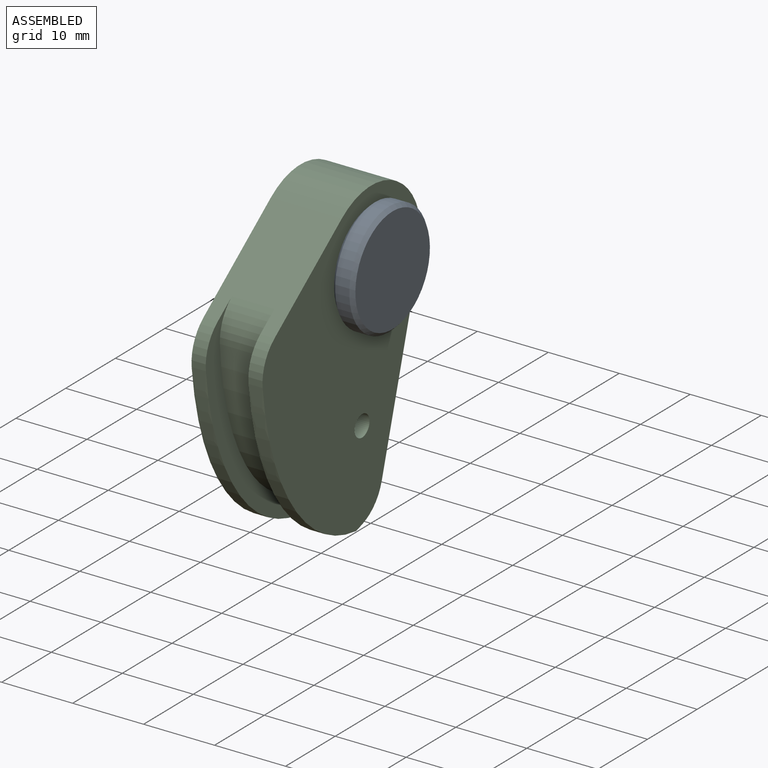
[diagram: assembled view]
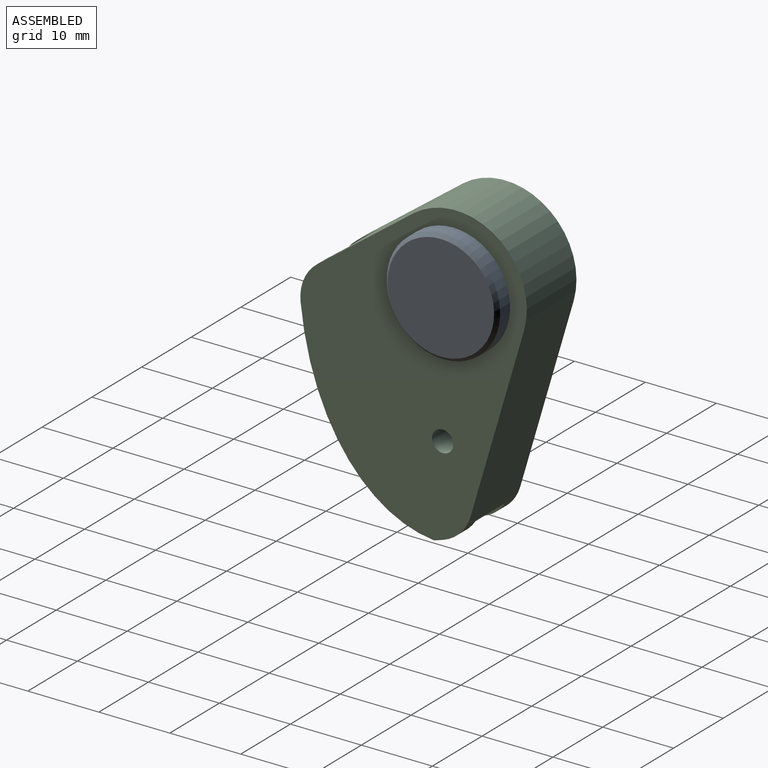
[diagram: assembled view, second angle]
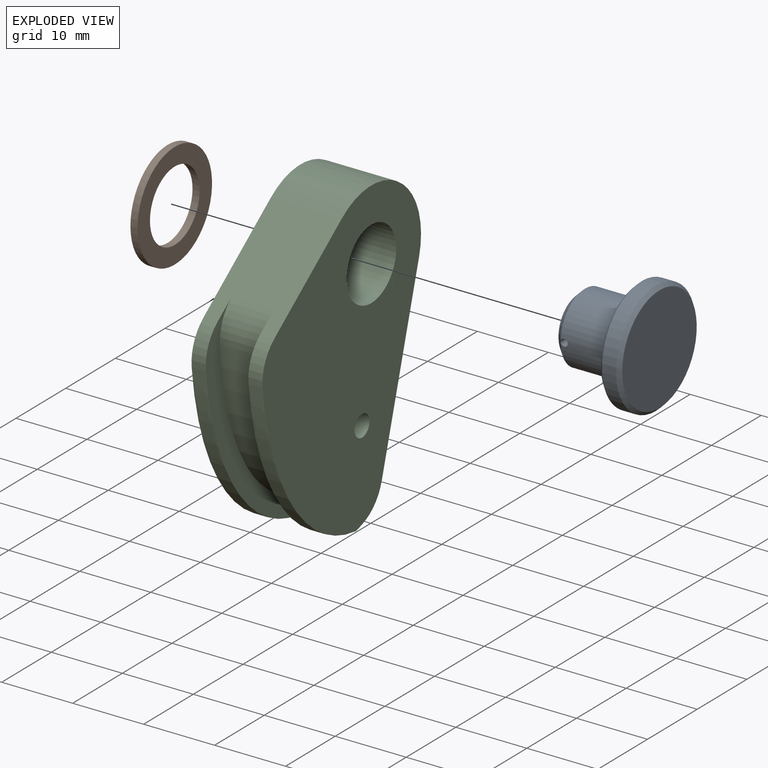
[diagram: exploded view]
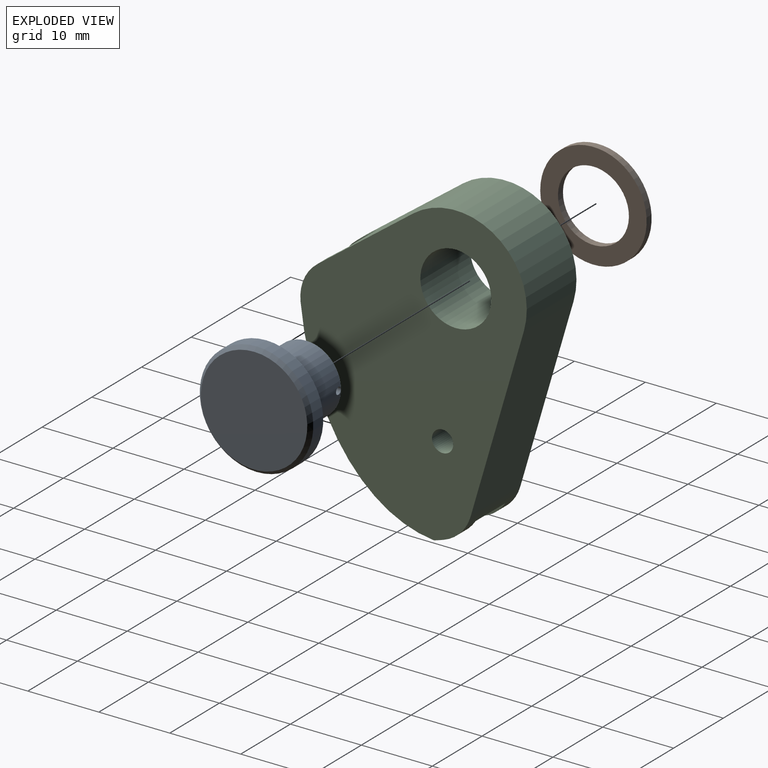
[diagram: exploded view, second angle]
ASSEMBLY  parts=3 mates=2
PART A: 9 faces, bbox 11.5x16x16 mm
  f0: cylinder r=4.9mm len=9.8mm, axis (1,0,0), area 229.4mm2, adj f4,f5,f6
  f1: plane 7.8x7.8mm, normal (-1,0,0), area 47.8mm2, adj f5
  f2: plane 15x15mm, normal (1,0,0), area 176.7mm2, adj f7
  f3: cylinder r=8mm len=16mm, axis (1,0,0), area 100.5mm2, adj f7,f8
  f4: plane 15x15mm, normal (-1,0,0), area 101.3mm2, adj f0,f8
  f5: cone r=3.9mm half-angle=45deg, axis (1,0,0), area 39.1mm2, adj f0,f1
  f6: cylinder r=0.5mm len=9.8mm, axis (0,1,0), area 30.6mm2, adj f0
  f7: cone r=7.5mm half-angle=45deg, axis (-1,0,0), area 34.4mm2, adj f2,f3
  f8: cone r=8mm half-angle=45deg, axis (1,0,0), area 34.4mm2, adj f3,f4
PART B: 4 faces, bbox 15x1x15 mm
  f0: cylinder r=5mm len=10mm, axis (0,1,0), area 31.4mm2, adj f2,f3
  f1: cylinder r=7.5mm len=15mm, axis (0,1,0), area 47.1mm2, adj f2,f3
  f2: plane 15x15mm, normal (0,-1,0), area 98.2mm2, adj f0,f1
  f3: plane 15x15mm, normal (0,1,0), area 98.2mm2, adj f0,f1
PART C: 19 faces, bbox 43x10x31.2 mm
  f0: extruded ~23.54x21.09mm, area 68.3mm2, adj f1,f4,f13,f18
  f1: cylinder r=6mm len=5.62mm, axis (0,1,0), area 12.4mm2, adj f0,f2,f13,f18
  f2: plane 12.53x11.28mm, normal (-0.74,0,0.67), area 147.3mm2, adj f1,f6,f7,f12,f13,f16,f17,f18
  f3: cylinder r=6mm len=10mm, axis (0,1,0), area 33mm2, adj f4,f8,f11,f12,f13,f15,f17,f18
  f4: cylinder r=33mm len=2mm, axis (0,1,0), area 2.9mm2, adj f0,f3,f13,f18
  f5: extruded ~23.54x21.09mm, area 68.3mm2, adj f6,f11,f12,f17
  f6: cylinder r=6mm len=5.62mm, axis (0,1,0), area 12.4mm2, adj f2,f5,f12,f17
  f7: cylinder r=10mm len=16.69mm, axis (0,1,0), area 249.6mm2, adj f2,f8,f12,f13
  f8: plane 26.21x10mm, normal (0.19,0,-0.98), area 267mm2, adj f3,f7,f12,f13
  f9: cylinder r=5mm len=10mm, axis (0,1,0), area 314.2mm2, adj f12,f13
  f10: cylinder r=1.5mm len=10mm, axis (0,1,0), area 94.2mm2, adj f12,f13
  f11: cylinder r=33mm len=2mm, axis (0,1,0), area 2.9mm2, adj f3,f5,f12,f17
  f12: plane 43x31.2mm, normal (0,-1,0), area 858.8mm2, adj f2,f3,f5,f6,f7,f8,f9,f10
  f13: plane 43x31.2mm, normal (0,1,0), area 858.8mm2, adj f0,f1,f2,f3,f4,f7,f8,f9
  f14: extruded ~23.19x18.5mm, area 192.8mm2, adj f15,f16,f17,f18
  f15: cylinder r=30mm len=6mm, axis (0,1,0), area 25.1mm2, adj f3,f14,f17,f18
  f16: cylinder r=6mm len=6mm, axis (0,1,0), area 35.4mm2, adj f2,f14,f17,f18
  f17: plane 31.53x25.38mm, normal (0,1,0), area 117.3mm2, adj f2,f3,f5,f6,f11,f14,f15,f16
  f18: plane 31.53x25.38mm, normal (0,-1,0), area 117.3mm2, adj f0,f1,f2,f3,f4,f14,f15,f16
PLACE A t=(73.85,18.9,-30.85)mm fixed
PLACE B rot(axis=(0.71,-0.71,0.03),176.2deg) t=(59.85,18.9,-30.85)mm
PLACE C rot(axis=(0.56,0.56,-0.61),117deg) t=(70.85,18.9,-30.85)mm
MATE revolute C.f9 <-> A.f0  axis (1,0,0) through (70.85,18.9,-30.85)mm
MATE fastened B.f1 <-> C.f9  axis (1,0,0) through (60.85,18.9,-30.85)mm
